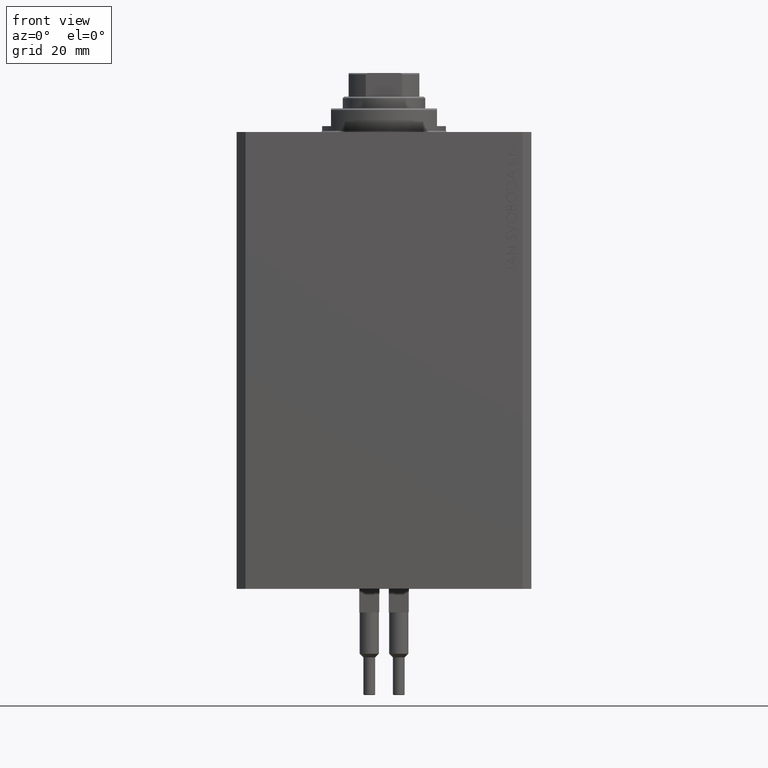
[diagram: clean part render]
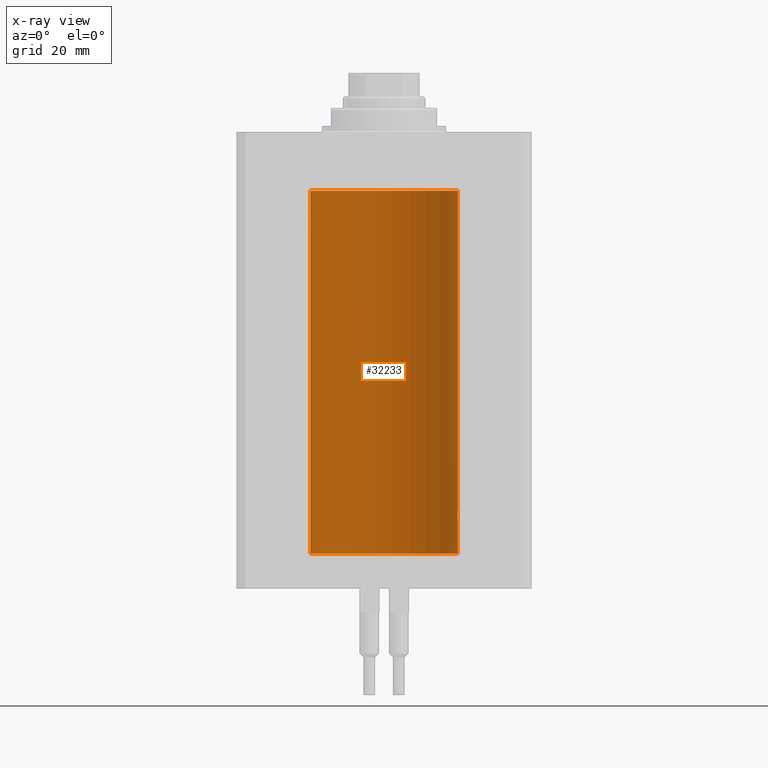
[diagram: x-ray — body ghosted, one internal face saturated and labeled with its STEP entity id]
A machine part, front view, then the same camera in x-ray: the body is ghosted and one INTERNAL B-rep face — a face not visible from any outside direction — is saturated and labeled: STEP entity #32233.
In plain terms, the highlighted cylindrical surface (partial cylindrical patch) has radius 25 mm, axis along (0, 0, 1).
Its self-contained STEP definition (entity closure, byte-faithful):
#159 = DIRECTION ( 'NONE',  ( -0.000000000000000000, -0.000000000000000000, 1.000000000000000000 ) ) ;
#644 = LINE ( 'NONE', #40458, #7934 ) ;
#736 = CARTESIAN_POINT ( 'NONE',  ( 24.99493190796008690, 0.5194315891213184821, -128.0642131447468159 ) ) ;
#764 = CYLINDRICAL_SURFACE ( 'NONE', #9189, 25.00000000000000000 ) ;
#793 = CARTESIAN_POINT ( 'NONE',  ( 25.00000000000000000, 0.000000000000000000, -20.00000000000000355 ) ) ;
#978 = CARTESIAN_POINT ( 'NONE',  ( 24.95467834240024274, 1.507571193169175316, -128.6791451623710145 ) ) ;
#1295 = CARTESIAN_POINT ( 'NONE',  ( -24.99496228453478608, 0.5178909248663671194, -23.06382286360416956 ) ) ;
#1396 = CARTESIAN_POINT ( 'NONE',  ( 25.00000000000000000, 0.000000000000000000, -143.0999999999999943 ) ) ;
#1489 = VECTOR ( 'NONE', #27940, 1000.000000000000000 ) ;
#1693 = CARTESIAN_POINT ( 'NONE',  ( 24.98457651818866054, 0.8863534138924967776, -128.2023442160224249 ) ) ;
#2320 = AXIS2_PLACEMENT_3D ( 'NONE', #12954, #19096, #34161 ) ;
#2431 = CARTESIAN_POINT ( 'NONE',  ( 24.92422785753205972, 1.947526681255378866, -130.5244453533215960 ) ) ;
#2910 = CARTESIAN_POINT ( 'NONE',  ( 25.00000000000000000, -5.091947734879877638E-15, -132.0000000000000000 ) ) ;
#2956 = CARTESIAN_POINT ( 'NONE',  ( -24.98456984035221851, 0.8865449913022026562, -26.79756360895472156 ) ) ;
#5763 = ORIENTED_EDGE ( 'NONE', *, *, #15287, .T. ) ;
#6083 = AXIS2_PLACEMENT_3D ( 'NONE', #9318, #31870, #46723 ) ;
#6122 = CARTESIAN_POINT ( 'NONE',  ( -24.98014837415680489, 1.002010110534174547, -23.26418383162123149 ) ) ;
#6308 = CARTESIAN_POINT ( 'NONE',  ( 24.98014008684977938, 1.002218476749562326, -131.7356982428405843 ) ) ;
#6544 = CARTESIAN_POINT ( 'NONE',  ( 25.00000000000000355, 0.1322318523520167322, -132.0000000000000568 ) ) ;
#6827 = CARTESIAN_POINT ( 'NONE',  ( -24.92494360443313894, 1.935934657392621272, -25.51890776192067278 ) ) ;
#7778 = CARTESIAN_POINT ( 'NONE',  ( 25.00000000000000000, -5.091947734879877638E-15, -132.0000000000000000 ) ) ;
#7934 = VECTOR ( 'NONE', #159, 1000.000000000000000 ) ;
#8127 = ORIENTED_EDGE ( 'NONE', *, *, #47945, .F. ) ;
#8501 = CARTESIAN_POINT ( 'NONE',  ( 24.98009620012517829, 1.003265033550147622, -128.2649430588943176 ) ) ;
#9189 = AXIS2_PLACEMENT_3D ( 'NONE', #11181, #39910, #22580 ) ;
#9318 = CARTESIAN_POINT ( 'NONE',  ( 0.000000000000000000, 0.000000000000000000, -143.0999999999999943 ) ) ;
#9717 = VERTEX_POINT ( 'NONE', #1396 ) ;
#10233 = CARTESIAN_POINT ( 'NONE',  ( -24.94950203352433604, 1.598895442473012851, -23.77053781758364792 ) ) ;
#10649 = CARTESIAN_POINT ( 'NONE',  ( 24.99895171050671294, 0.2622427397369146429, -131.9870152263268324 ) ) ;
#10781 = EDGE_CURVE ( 'NONE', #11223, #24517, #11406, .T. ) ;
#10783 = B_SPLINE_CURVE_WITH_KNOTS ( 'NONE', 3,
 ( #24069, #46690, #13392, #1295, #24534, #39366, #6122, #34552, #16090, #10233, #47170, #18214, #46937, #29395, #39612, #6827, #13867, #17747, #25505, #21619, #40330, #39853, #40085, #43759, #2956, #28678, #43523, #14341, #35734, #25019 ),
 .UNSPECIFIED., .F., .F.,
 ( 4, 2, 2, 2, 2, 2, 2, 2, 2, 2, 2, 2, 2, 2, 4 ),
 ( 1.711460648662030874E-19, 0.0003909631133201684925, 0.0007819262266403368767, 0.001172889339960505152, 0.001563852453280673536, 0.002345778679921010305, 0.003127704906561347507, 0.003518668019881516108, 0.003909631133201684275, 0.004300594246521852876, 0.004691557359842020609, 0.005082520473162189210, 0.005473483586482357811, 0.005864446699802525545, 0.006255409813122695013 ),
 .UNSPECIFIED. ) ;
#10955 = DIRECTION ( 'NONE',  ( -0.000000000000000000, -0.000000000000000000, 1.000000000000000000 ) ) ;
#11181 = CARTESIAN_POINT ( 'NONE',  ( 0.000000000000000000, 0.000000000000000000, -143.0999999999999943 ) ) ;
#11223 = VERTEX_POINT ( 'NONE', #28247 ) ;
#11406 = LINE ( 'NONE', #41050, #16171 ) ;
#12130 = CARTESIAN_POINT ( 'NONE',  ( 24.94947734723935540, 1.590234439578162018, -128.7801129525318800 ) ) ;
#12814 = VERTEX_POINT ( 'NONE', #40530 ) ;
#12954 = CARTESIAN_POINT ( 'NONE',  ( 0.000000000000000000, 0.000000000000000000, -20.00000000000000355 ) ) ;
#13113 = ORIENTED_EDGE ( 'NONE', *, *, #14690, .F. ) ;
#13349 = EDGE_LOOP ( 'NONE', ( #27917, #13113, #31798, #25374, #24468, #40732, #27150, #8127, #5763 ) ) ;
#13392 = CARTESIAN_POINT ( 'NONE',  ( -24.99895219182537787, 0.2621830013652935443, -23.01297886590101172 ) ) ;
#13813 = CARTESIAN_POINT ( 'NONE',  ( 24.91987158875419794, 2.000000000000375255, -130.0000000000000000 ) ) ;
#13867 = CARTESIAN_POINT ( 'NONE',  ( -24.92788761901291750, 1.898142276082072089, -25.64361034516351978 ) ) ;
#14341 = CARTESIAN_POINT ( 'NONE',  ( -24.99894363691344168, 0.2631623743596695486, -26.98691550260398841 ) ) ;
#14690 = EDGE_CURVE ( 'NONE', #9717, #12814, #23877, .T. ) ;
#15017 = EDGE_CURVE ( 'NONE', #9717, #36918, #26996, .T. ) ;
#15287 = EDGE_CURVE ( 'NONE', #21715, #39920, #10783, .T. ) ;
#15526 = CARTESIAN_POINT ( 'NONE',  ( 24.93982559358190443, 1.735040297787693753, -128.9967028623315173 ) ) ;
#15528 = VERTEX_POINT ( 'NONE', #13813 ) ;
#15771 = CARTESIAN_POINT ( 'NONE',  ( 24.92495585240438061, 1.935777409849492203, -129.4805144122084073 ) ) ;
#16090 = CARTESIAN_POINT ( 'NONE',  ( -24.96517827869064021, 1.322271947215002852, -23.49381014772490417 ) ) ;
#16171 = VECTOR ( 'NONE', #23051, 1000.000000000000000 ) ;
#16251 = CARTESIAN_POINT ( 'NONE',  ( 24.99199530066697861, 0.6440939830361807061, -128.1020190641096121 ) ) ;
#16412 = EDGE_CURVE ( 'NONE', #36918, #15528, #39087, .T. ) ;
#17747 = CARTESIAN_POINT ( 'NONE',  ( -24.93531696180024682, 1.797913585505315215, -25.88582454002299826 ) ) ;
#18214 = CARTESIAN_POINT ( 'NONE',  ( -24.92424086025528496, 1.947362422016076788, -24.47497476601984090 ) ) ;
#19096 = DIRECTION ( 'NONE',  ( 0.000000000000000000, 0.000000000000000000, 1.000000000000000000 ) ) ;
#20911 = CIRCLE ( 'NONE', #2320, 25.00000000000000000 ) ;
#21619 = CARTESIAN_POINT ( 'NONE',  ( -24.94946096189906015, 1.590491165172939647, -26.21955560407613461 ) ) ;
#21715 = VERTEX_POINT ( 'NONE', #46093 ) ;
#21880 = CARTESIAN_POINT ( 'NONE',  ( -25.00000000000000000, 3.061616997868383043E-15, -143.0999999999999943 ) ) ;
#22580 = DIRECTION ( 'NONE',  ( 1.000000000000000000, 0.000000000000000000, 0.000000000000000000 ) ) ;
#23051 = DIRECTION ( 'NONE',  ( -0.000000000000000000, -0.000000000000000000, 1.000000000000000000 ) ) ;
#23877 = CIRCLE ( 'NONE', #6083, 25.00000000000000000 ) ;
#24069 = CARTESIAN_POINT ( 'NONE',  ( -25.00000000000000000, -9.880247245846597702E-15, -23.00000000000000000 ) ) ;
#24468 = ORIENTED_EDGE ( 'NONE', *, *, #36162, .T. ) ;
#24517 = VERTEX_POINT ( 'NONE', #793 ) ;
#24534 = CARTESIAN_POINT ( 'NONE',  ( -24.99197317726958545, 0.6449463114735953795, -23.10230905830972858 ) ) ;
#24976 = CARTESIAN_POINT ( 'NONE',  ( 24.91987158875419794, 2.000000000000375255, -130.0000000000000000 ) ) ;
#25019 = CARTESIAN_POINT ( 'NONE',  ( -25.00000000000000000, 3.061616987151861079E-15, -26.99999999999999645 ) ) ;
#25374 = ORIENTED_EDGE ( 'NONE', *, *, #16412, .T. ) ;
#25505 = CARTESIAN_POINT ( 'NONE',  ( -24.93980871060585258, 1.735282661184229358, -26.00288189918856219 ) ) ;
#26930 = CARTESIAN_POINT ( 'NONE',  ( 24.92790171662583987, 1.897957730269075993, -129.3558509857567174 ) ) ;
#26996 = LINE ( 'NONE', #46190, #1489 ) ;
#27150 = ORIENTED_EDGE ( 'NONE', *, *, #36499, .T. ) ;
#27177 = CARTESIAN_POINT ( 'NONE',  ( 25.00000000000000000, 0.1305261351234901501, -128.0000000000000000 ) ) ;
#27643 = CARTESIAN_POINT ( 'NONE',  ( 24.99894413130755311, 0.2631018416927570769, -128.0130784248878797 ) ) ;
#27917 = ORIENTED_EDGE ( 'NONE', *, *, #42747, .F. ) ;
#27940 = DIRECTION ( 'NONE',  ( -0.000000000000000000, -0.000000000000000000, 1.000000000000000000 ) ) ;
#28247 = CARTESIAN_POINT ( 'NONE',  ( 25.00000000000000000, -1.072061970195355044E-23, -128.0000000000000000 ) ) ;
#28390 = CARTESIAN_POINT ( 'NONE',  ( 24.99196954445030627, 0.6450912151121425131, -131.8976436764501443 ) ) ;
#28678 = CARTESIAN_POINT ( 'NONE',  ( -24.99199174798888023, 0.6442364453337716679, -26.89793475977048232 ) ) ;
#29101 = CARTESIAN_POINT ( 'NONE',  ( 24.94948532700468036, 1.599156973340005949, -131.2291341524913832 ) ) ;
#29347 = CARTESIAN_POINT ( 'NONE',  ( 24.91987158875419439, 2.000000000000376144, -130.2610752061100357 ) ) ;
#29395 = CARTESIAN_POINT ( 'NONE',  ( -24.91986783040116649, 2.000046828840892577, -25.12978542103931545 ) ) ;
#30575 = CARTESIAN_POINT ( 'NONE',  ( 24.96525661602875701, 1.320872503675255993, -128.4924442850773971 ) ) ;
#31798 = ORIENTED_EDGE ( 'NONE', *, *, #15017, .T. ) ;
#31870 = DIRECTION ( 'NONE',  ( 0.000000000000000000, 0.000000000000000000, 1.000000000000000000 ) ) ;
#32233 = ADVANCED_FACE ( 'NONE', ( #43584 ), #764, .F. ) ;
#32744 = CARTESIAN_POINT ( 'NONE',  ( 24.99496001540386203, 0.5180074392840654518, -131.9361479946135205 ) ) ;
#32975 = CARTESIAN_POINT ( 'NONE',  ( 24.96516502151962413, 1.322522485723478081, -131.5059723511098184 ) ) ;
#33967 = CARTESIAN_POINT ( 'NONE',  ( -25.00000000000000000, 3.061616987151861079E-15, -26.99999999999999645 ) ) ;
#33977 = CARTESIAN_POINT ( 'NONE',  ( 24.91987158875419794, 2.000000000000375255, -130.0000000000000000 ) ) ;
#34161 = DIRECTION ( 'NONE',  ( 1.000000000000000000, 0.000000000000000000, 0.000000000000000000 ) ) ;
#34223 = CARTESIAN_POINT ( 'NONE',  ( 24.91987158875419084, 2.000000000000375255, -129.8695223675034924 ) ) ;
#34466 = CARTESIAN_POINT ( 'NONE',  ( 24.97045842037802998, 1.219816859706702727, -128.4097138165729746 ) ) ;
#34552 = CARTESIAN_POINT ( 'NONE',  ( -24.97048098995609422, 1.219391728175664324, -23.40935049578022031 ) ) ;
#34940 = CARTESIAN_POINT ( 'NONE',  ( 24.93533359819880957, 1.797683477752172410, -129.1137124550939461 ) ) ;
#35520 = VERTEX_POINT ( 'NONE', #46273 ) ;
#35734 = CARTESIAN_POINT ( 'NONE',  ( -25.00000000000001066, 0.1305561315491718666, -27.00000000000000711 ) ) ;
#36162 = EDGE_CURVE ( 'NONE', #15528, #11223, #44368, .T. ) ;
#36394 = CARTESIAN_POINT ( 'NONE',  ( 24.97046928552371270, 1.219632852334580075, -131.5904672177837256 ) ) ;
#36499 = EDGE_CURVE ( 'NONE', #24517, #35520, #20911, .T. ) ;
#36918 = VERTEX_POINT ( 'NONE', #7778 ) ;
#37409 = VECTOR ( 'NONE', #10955, 1000.000000000000000 ) ;
#39087 = B_SPLINE_CURVE_WITH_KNOTS ( 'NONE', 3,
 ( #2910, #6544, #10649, #32744, #28390, #43234, #6308, #36394, #32975, #29101, #43946, #2431, #29347, #24976 ),
 .UNSPECIFIED., .F., .F.,
 ( 4, 2, 2, 2, 2, 2, 4 ),
 ( 4.948121741372981372E-18, 0.0003910529405526613853, 0.0007821058811053178917, 0.001173158821657974398, 0.001564211762210630796, 0.002346317643316002573, 0.003128423524421374349 ),
 .UNSPECIFIED. ) ;
#39366 = CARTESIAN_POINT ( 'NONE',  ( -24.98454822070441850, 0.8871466876120172040, -23.20273613247366384 ) ) ;
#39612 = CARTESIAN_POINT ( 'NONE',  ( -24.92092244115666944, 1.987028274514494930, -25.26234881237649432 ) ) ;
#39853 = CARTESIAN_POINT ( 'NONE',  ( -24.96524308704138662, 1.321128302361972873, -26.50733385850702817 ) ) ;
#39910 = DIRECTION ( 'NONE',  ( -0.000000000000000000, -0.000000000000000000, 1.000000000000000000 ) ) ;
#39920 = VERTEX_POINT ( 'NONE', #33967 ) ;
#40085 = CARTESIAN_POINT ( 'NONE',  ( -24.97044682385318026, 1.220055540032808805, -26.59010549084178265 ) ) ;
#40330 = CARTESIAN_POINT ( 'NONE',  ( -24.95466269969938011, 1.507830206157726893, -26.32056178261444046 ) ) ;
#40458 = CARTESIAN_POINT ( 'NONE',  ( -25.00000000000000000, 3.061616997868383043E-15, -143.0999999999999943 ) ) ;
#40530 = CARTESIAN_POINT ( 'NONE',  ( -25.00000000000000000, 3.061616997868383043E-15, -143.0999999999999943 ) ) ;
#40732 = ORIENTED_EDGE ( 'NONE', *, *, #10781, .T. ) ;
#41050 = CARTESIAN_POINT ( 'NONE',  ( 25.00000000000000000, 0.000000000000000000, -143.0999999999999943 ) ) ;
#42747 = EDGE_CURVE ( 'NONE', #12814, #39920, #644, .T. ) ;
#43234 = CARTESIAN_POINT ( 'NONE',  ( 24.98454161695537579, 0.8873356620646051240, -131.7971726743457452 ) ) ;
#43523 = CARTESIAN_POINT ( 'NONE',  ( -24.99492963589240091, 0.5195477780157325975, -26.93575766978349151 ) ) ;
#43584 = FACE_OUTER_BOUND ( 'NONE', #13349, .T. ) ;
#43759 = CARTESIAN_POINT ( 'NONE',  ( -24.98008786170526108, 1.003474227436682797, -26.73493817401089956 ) ) ;
#43946 = CARTESIAN_POINT ( 'NONE',  ( 24.93900639076504433, 1.748128916801911181, -131.0059564568424832 ) ) ;
#44251 = LINE ( 'NONE', #21880, #37409 ) ;
#44368 = B_SPLINE_CURVE_WITH_KNOTS ( 'NONE', 3,
 ( #33977, #34223, #45420, #15771, #26930, #34940, #15526, #12130, #978, #30575, #34466, #8501, #1693, #16251, #736, #27643, #27177, #45905 ),
 .UNSPECIFIED., .F., .F.,
 ( 4, 2, 2, 2, 2, 2, 2, 2, 4 ),
 ( 0.003128423524421374349, 0.003519296810509135818, 0.003910170096596897286, 0.004301043382684659189, 0.004691916668772420224, 0.005082789954860182126, 0.005473663240947944028, 0.005864536527035705063, 0.006255409813123466965 ),
 .UNSPECIFIED. ) ;
#45420 = CARTESIAN_POINT ( 'NONE',  ( 24.92092960952686909, 1.986938806757485132, -129.7369911891059076 ) ) ;
#45905 = CARTESIAN_POINT ( 'NONE',  ( 25.00000000000000000, -1.072061970195355044E-23, -128.0000000000000000 ) ) ;
#46093 = CARTESIAN_POINT ( 'NONE',  ( -25.00000000000000000, -9.880247245846597702E-15, -23.00000000000000000 ) ) ;
#46190 = CARTESIAN_POINT ( 'NONE',  ( 25.00000000000000000, 0.000000000000000000, -143.0999999999999943 ) ) ;
#46273 = CARTESIAN_POINT ( 'NONE',  ( -25.00000000000000000, 3.061616997868383043E-15, -20.00000000000000355 ) ) ;
#46690 = CARTESIAN_POINT ( 'NONE',  ( -25.00000000000000000, 0.1322014778934262891, -23.00000000000000355 ) ) ;
#46723 = DIRECTION ( 'NONE',  ( 1.000000000000000000, 0.000000000000000000, 0.000000000000000000 ) ) ;
#46937 = CARTESIAN_POINT ( 'NONE',  ( -24.91987913663314558, 1.999905953907249456, -24.73827023896789967 ) ) ;
#47170 = CARTESIAN_POINT ( 'NONE',  ( -24.93902394873053296, 1.747880816115506164, -23.99362802520557025 ) ) ;
#47945 = EDGE_CURVE ( 'NONE', #21715, #35520, #44251, .T. ) ;